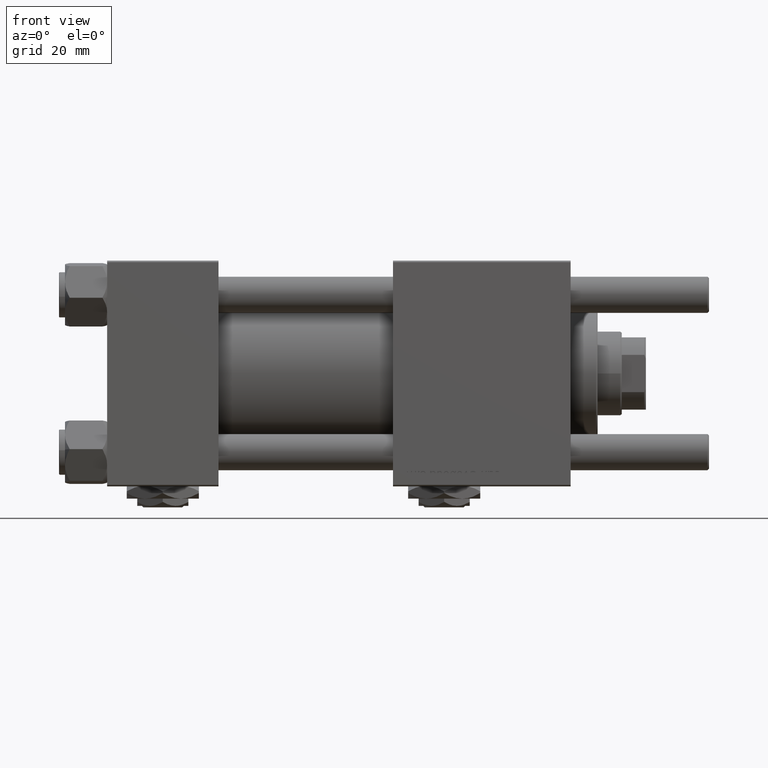
[diagram: clean part render]
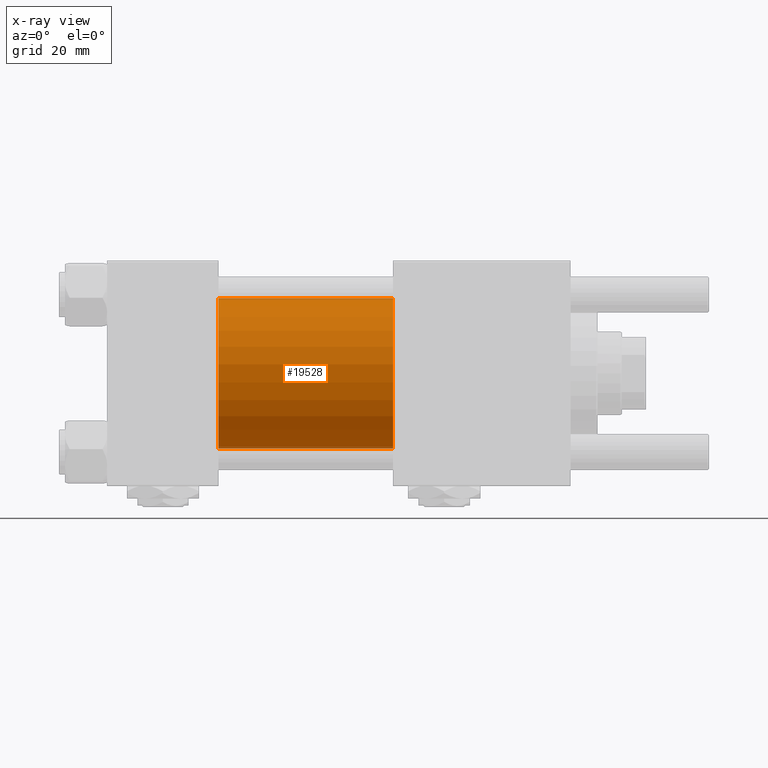
[diagram: x-ray — body ghosted, one internal face saturated and labeled with its STEP entity id]
A machine part, front view, then the same camera in x-ray: the body is ghosted and one INTERNAL B-rep face — a face not visible from any outside direction — is saturated and labeled: STEP entity #19528.
In plain terms, the highlighted cylindrical surface (partial cylindrical patch) has radius 25 mm, axis along (-1, -0, -0).
Its self-contained STEP definition (entity closure, byte-faithful):
#1123 = VERTEX_POINT ( 'NONE', #15726 ) ;
#1150 = DIRECTION ( 'NONE',  ( 0.000000000000000000, 0.000000000000000000, 1.000000000000000000 ) ) ;
#2939 = DIRECTION ( 'NONE',  ( 0.000000000000000000, 0.000000000000000000, -1.000000000000000000 ) ) ;
#2995 = ORIENTED_EDGE ( 'NONE', *, *, #3701, .T. ) ;
#3095 = ORIENTED_EDGE ( 'NONE', *, *, #43280, .F. ) ;
#3118 = CARTESIAN_POINT ( 'NONE',  ( 95.00000000000000000, -2.602085213965210642E-15, 25.00000000000000000 ) ) ;
#3701 = EDGE_CURVE ( 'NONE', #3953, #49935, #38248, .T. ) ;
#3953 = VERTEX_POINT ( 'NONE', #3118 ) ;
#7723 = DIRECTION ( 'NONE',  ( -1.000000000000000000, -0.000000000000000000, -0.000000000000000000 ) ) ;
#9091 = DIRECTION ( 'NONE',  ( 1.000000000000000000, 0.000000000000000000, 0.000000000000000000 ) ) ;
#9324 = CIRCLE ( 'NONE', #49166, 25.00000000000000000 ) ;
#10052 = FACE_OUTER_BOUND ( 'NONE', #31166, .T. ) ;
#13898 = AXIS2_PLACEMENT_3D ( 'NONE', #35896, #23705, #1150 ) ;
#15433 = CARTESIAN_POINT ( 'NONE',  ( 95.00000000000000000, -2.602085213965210642E-15, 25.00000000000000000 ) ) ;
#15726 = CARTESIAN_POINT ( 'NONE',  ( 37.00000000000000000, -2.602085213965210642E-15, 25.00000000000000000 ) ) ;
#18887 = CARTESIAN_POINT ( 'NONE',  ( 95.00000000000000000, -2.602085213965210642E-15, 0.000000000000000000 ) ) ;
#19528 = ADVANCED_FACE ( 'NONE', ( #10052 ), #46289, .F. ) ;
#20593 = CARTESIAN_POINT ( 'NONE',  ( 37.00000000000000000, 4.595317839031718093E-16, -25.00000000000000000 ) ) ;
#23705 = DIRECTION ( 'NONE',  ( -1.000000000000000000, -0.000000000000000000, -0.000000000000000000 ) ) ;
#27193 = DIRECTION ( 'NONE',  ( 0.000000000000000000, 0.000000000000000000, -1.000000000000000000 ) ) ;
#27363 = ORIENTED_EDGE ( 'NONE', *, *, #53966, .T. ) ;
#30185 = VERTEX_POINT ( 'NONE', #20593 ) ;
#31166 = EDGE_LOOP ( 'NONE', ( #2995, #27363, #46424, #3095 ) ) ;
#31957 = LINE ( 'NONE', #44238, #49071 ) ;
#32958 = LINE ( 'NONE', #15433, #47710 ) ;
#34696 = CARTESIAN_POINT ( 'NONE',  ( 37.00000000000000000, -2.602085213965210642E-15, 0.000000000000000000 ) ) ;
#35896 = CARTESIAN_POINT ( 'NONE',  ( 95.00000000000000000, -2.602085213965210642E-15, 0.000000000000000000 ) ) ;
#38248 = CIRCLE ( 'NONE', #51498, 25.00000000000000000 ) ;
#43280 = EDGE_CURVE ( 'NONE', #3953, #1123, #32958, .T. ) ;
#43915 = DIRECTION ( 'NONE',  ( 1.000000000000000000, 0.000000000000000000, 0.000000000000000000 ) ) ;
#44238 = CARTESIAN_POINT ( 'NONE',  ( 95.00000000000000000, 4.595317839031718093E-16, -25.00000000000000000 ) ) ;
#46289 = CYLINDRICAL_SURFACE ( 'NONE', #13898, 25.00000000000000000 ) ;
#46424 = ORIENTED_EDGE ( 'NONE', *, *, #51031, .F. ) ;
#46638 = DIRECTION ( 'NONE',  ( -1.000000000000000000, -0.000000000000000000, -0.000000000000000000 ) ) ;
#47710 = VECTOR ( 'NONE', #46638, 1000.000000000000000 ) ;
#48121 = CARTESIAN_POINT ( 'NONE',  ( 95.00000000000000000, 4.595317839031718093E-16, -25.00000000000000000 ) ) ;
#49071 = VECTOR ( 'NONE', #7723, 1000.000000000000000 ) ;
#49166 = AXIS2_PLACEMENT_3D ( 'NONE', #34696, #43915, #2939 ) ;
#49935 = VERTEX_POINT ( 'NONE', #48121 ) ;
#51031 = EDGE_CURVE ( 'NONE', #1123, #30185, #9324, .T. ) ;
#51498 = AXIS2_PLACEMENT_3D ( 'NONE', #18887, #9091, #27193 ) ;
#53966 = EDGE_CURVE ( 'NONE', #49935, #30185, #31957, .T. ) ;